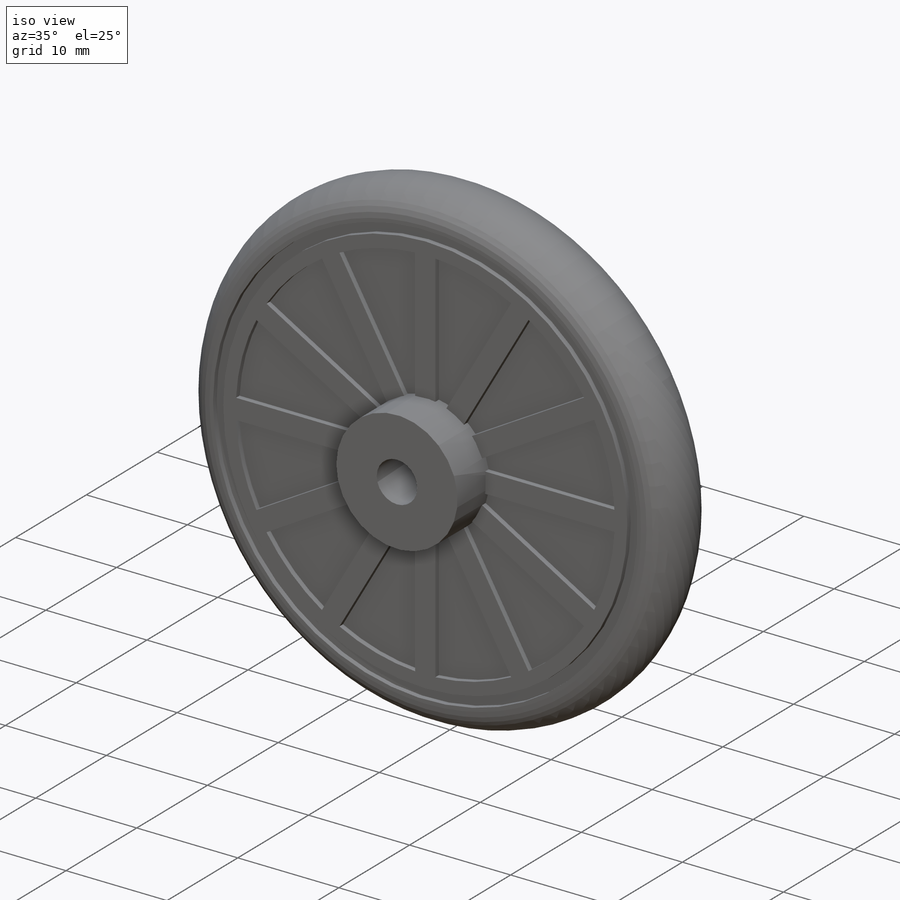
[diagram: iso view]
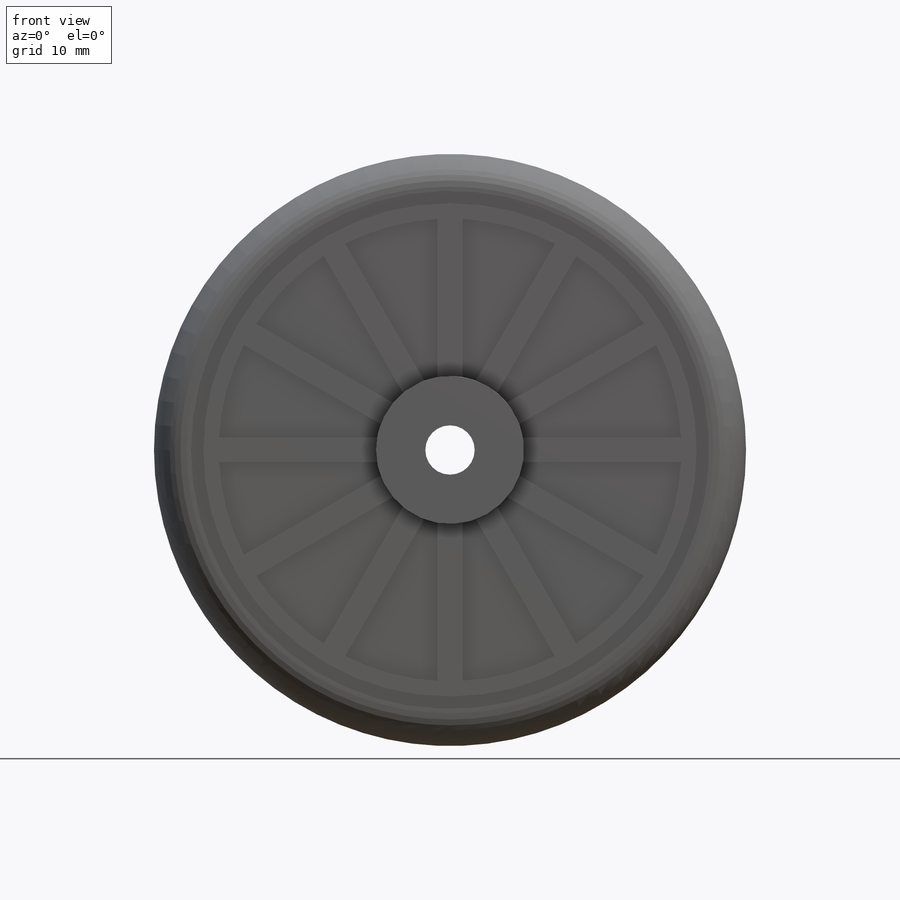
[diagram: front view]
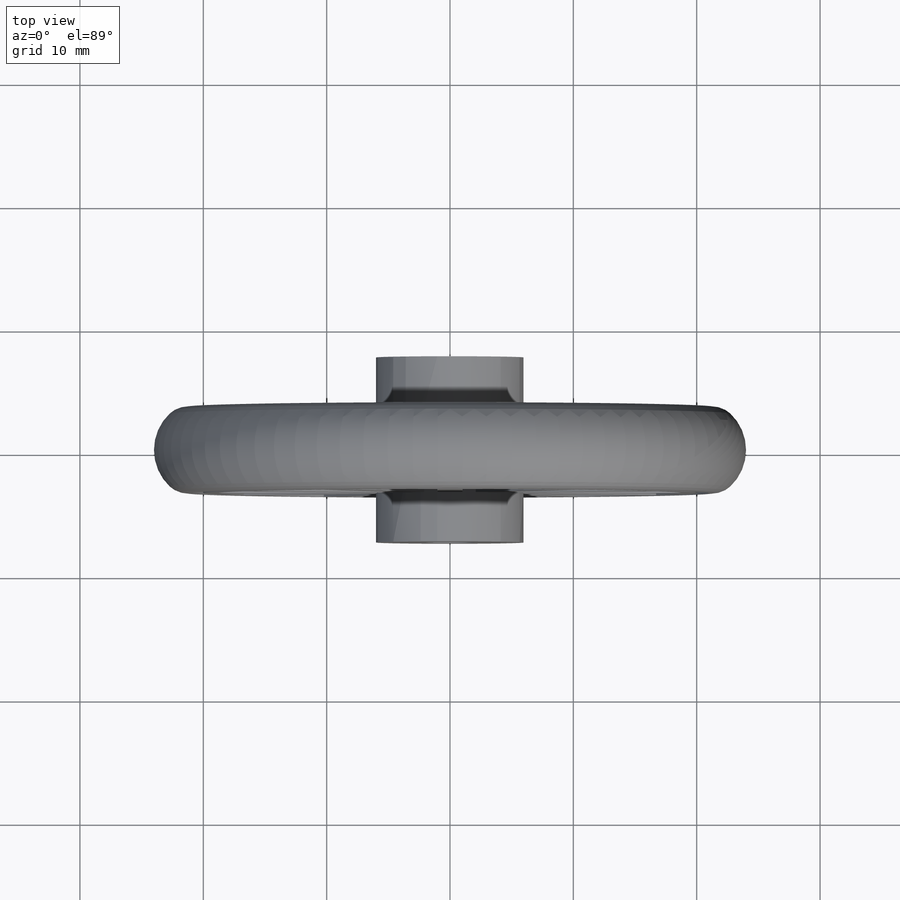
[diagram: top view]
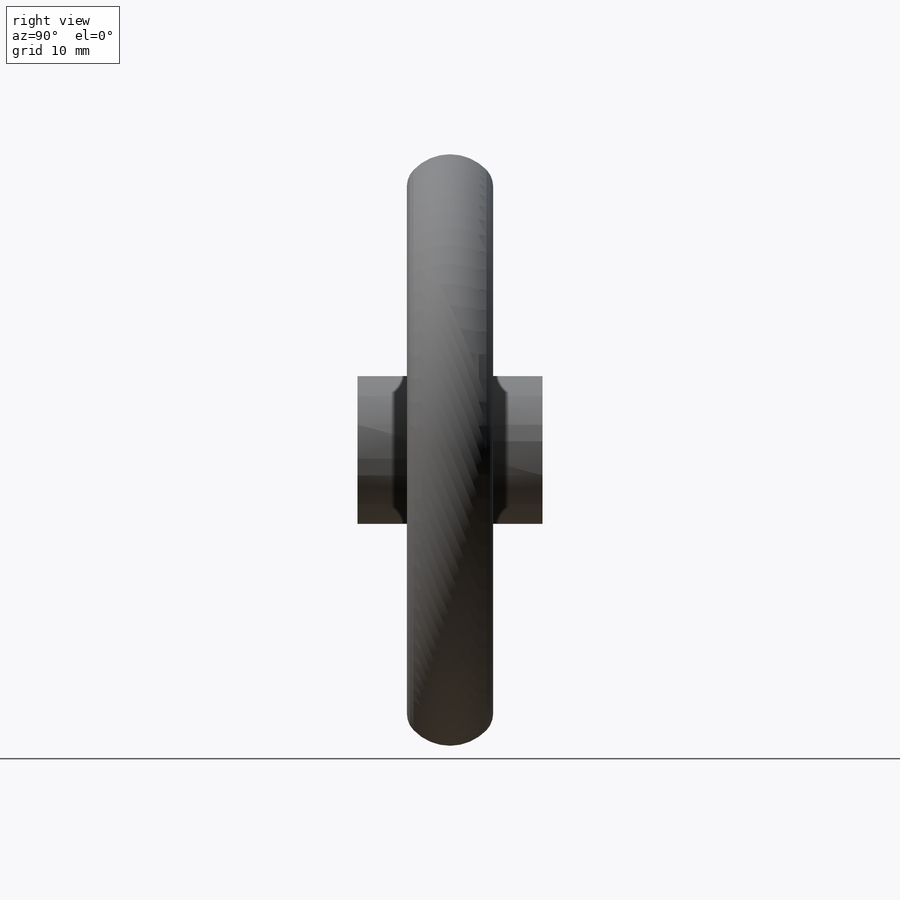
[diagram: right view]
SOLIDWORKS PART (.sldprt)
format: sldprt  version: not decoded by parser v0  size: 352,256 bytes
history: native  units: mm
features: sketch x3, cut_extrude x2, material x1, revolve x1, fillet x1, pattern_circular x1, mirror x1 (+12 scaffold rows collapsed)
feature tree (22):
  scaffold x12  (default folders/planes/origin — collapsed)
  material  "PA Type 6"
  sketch  "Sketch1"  dims[D1=4.0mm D2=12.0mm D3=15.0mm D4=7.0mm D5=48.0mm D6=44.0mm]
  revolve  "Revolve1"  Angle=360deg
  sketch  "Sketch2"  dims[D1=40.0mm D2=42.0mm]
  cut_extrude  "Cut-Extrude1"  Depth=0.5mm
  fillet  "Fillet1"  Radius=2mm
  sketch  "Sketch3"  dims[c1.D1=37.5mm c1.D2=~31.198499mm c2.D2=30.0deg c2.D3=1.0mm]
  cut_extrude  "Cut-Extrude2"  Depth=0.5mm
  pattern_circular  "CirPattern1"  Count=12 Angle=360deg
  mirror  "Mirror1"
decode coverage: 8 of 9 modeling features carry decoded parameters
note: ~ marks probable driven/reference dimensions
note: suppression state not decoded; provenance and decode notes live in map.json
